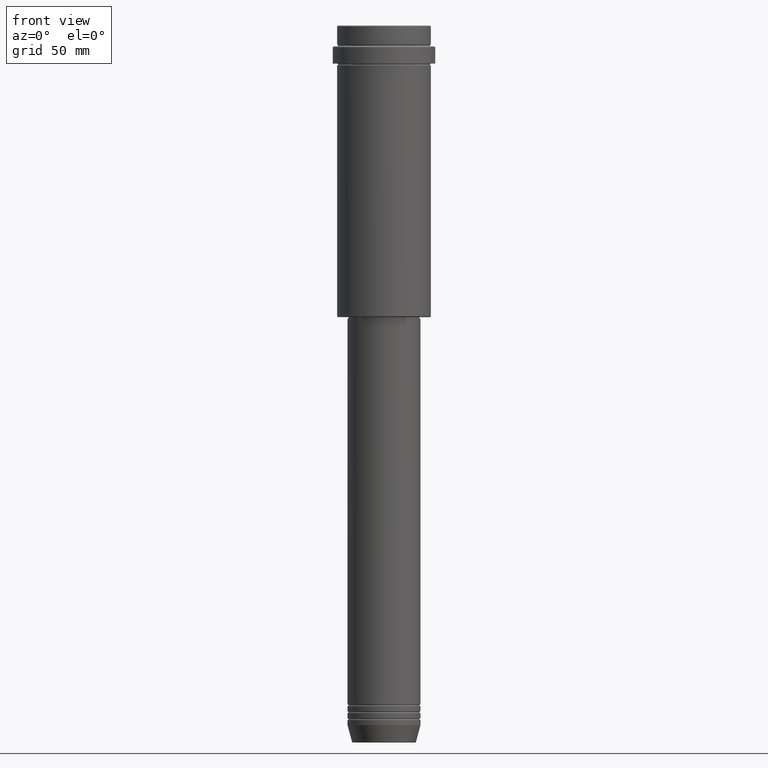
[diagram: clean part render]
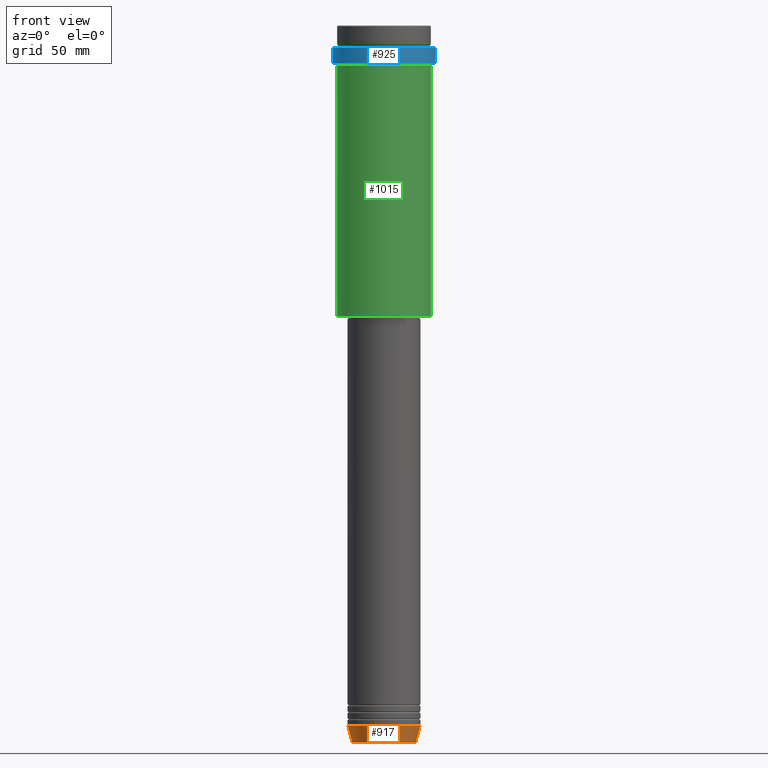
[diagram: same view with three faces highlighted in distinct colors, each labeled with its STEP entity id]
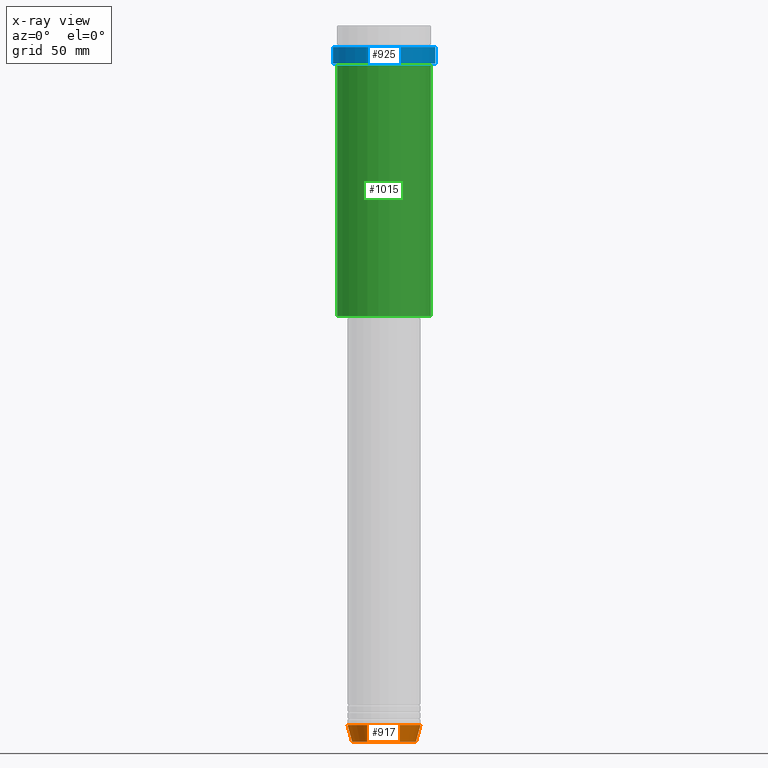
[diagram: x-ray of the same camera — body ghosted, the three highlighted faces saturated]
A machine part, front view with three faces highlighted in distinct colors.
The next image is the same camera in x-ray (body ghosted, the three faces saturated) — at least one of them is partly hidden behind the body in this view.
Their STEP definitions:

[orange] entity #917 — the highlighted conical surface has half-angle 15 deg.
#12 = LINE ( 'NONE', #343, #694 ) ;
#68 = VERTEX_POINT ( 'NONE', #707 ) ;
#70 = AXIS2_PLACEMENT_3D ( 'NONE', #159, #684, #705 ) ;
#116 = CARTESIAN_POINT ( 'NONE',  ( 21.00000000000000000, 0.000000000000000000, -402.9999999999999432 ) ) ;
#159 = CARTESIAN_POINT ( 'NONE',  ( 0.000000000000000000, 0.000000000000000000, -412.6294095225512137 ) ) ;
#195 = DIRECTION ( 'NONE',  ( 0.2588190451025211836, 0.000000000000000000, 0.9659258262890680902 ) ) ;
#201 = VERTEX_POINT ( 'NONE', #116 ) ;
#215 = ORIENTED_EDGE ( 'NONE', *, *, #997, .T. ) ;
#219 = CARTESIAN_POINT ( 'NONE',  ( -21.00000000000000000, 2.571758278209441661E-15, -402.9999999999999432 ) ) ;
#248 = CARTESIAN_POINT ( 'NONE',  ( -21.00000000000000000, 2.571758278209441661E-15, -402.9999999999999432 ) ) ;
#343 = CARTESIAN_POINT ( 'NONE',  ( 21.00000000000000000, 0.000000000000000000, -402.9999999999999432 ) ) ;
#367 = VERTEX_POINT ( 'NONE', #740 ) ;
#376 = VERTEX_POINT ( 'NONE', #248 ) ;
#382 = CONICAL_SURFACE ( 'NONE', #1123, 21.00000000000000000, 0.2617993877991499074 ) ;
#527 = EDGE_LOOP ( 'NONE', ( #1245, #643, #215, #592 ) ) ;
#569 = DIRECTION ( 'NONE',  ( -0.000000000000000000, -0.000000000000000000, 1.000000000000000000 ) ) ;
#587 = VECTOR ( 'NONE', #1079, 1000.000000000000114 ) ;
#592 = ORIENTED_EDGE ( 'NONE', *, *, #816, .F. ) ;
#622 = FACE_OUTER_BOUND ( 'NONE', #527, .T. ) ;
#643 = ORIENTED_EDGE ( 'NONE', *, *, #1165, .T. ) ;
#675 = CIRCLE ( 'NONE', #70, 18.41980749484383750 ) ;
#684 = DIRECTION ( 'NONE',  ( -0.000000000000000000, -0.000000000000000000, 1.000000000000000000 ) ) ;
#694 = VECTOR ( 'NONE', #195, 1000.000000000000114 ) ;
#700 = CARTESIAN_POINT ( 'NONE',  ( 0.000000000000000000, 0.000000000000000000, -402.9999999999999432 ) ) ;
#705 = DIRECTION ( 'NONE',  ( 1.000000000000000000, 0.000000000000000000, 0.000000000000000000 ) ) ;
#707 = CARTESIAN_POINT ( 'NONE',  ( -18.41980749484383750, 2.413767053578267458E-15, -412.6294095225512137 ) ) ;
#740 = CARTESIAN_POINT ( 'NONE',  ( 18.41980749484383750, 0.000000000000000000, -412.6294095225512137 ) ) ;
#816 = EDGE_CURVE ( 'NONE', #376, #201, #1054, .T. ) ;
#897 = AXIS2_PLACEMENT_3D ( 'NONE', #700, #569, #992 ) ;
#917 = ADVANCED_FACE ( 'NONE', ( #622 ), #382, .T. ) ;
#992 = DIRECTION ( 'NONE',  ( 1.000000000000000000, 0.000000000000000000, 0.000000000000000000 ) ) ;
#997 = EDGE_CURVE ( 'NONE', #367, #201, #12, .T. ) ;
#1039 = CARTESIAN_POINT ( 'NONE',  ( 0.000000000000000000, 0.000000000000000000, -402.9999999999999432 ) ) ;
#1054 = CIRCLE ( 'NONE', #897, 21.00000000000000000 ) ;
#1075 = EDGE_CURVE ( 'NONE', #68, #376, #1280, .T. ) ;
#1079 = DIRECTION ( 'NONE',  ( -0.2588190451025211836, 3.169619151431770488E-17, 0.9659258262890680902 ) ) ;
#1123 = AXIS2_PLACEMENT_3D ( 'NONE', #1039, #1132, #1354 ) ;
#1132 = DIRECTION ( 'NONE',  ( -0.000000000000000000, -0.000000000000000000, 1.000000000000000000 ) ) ;
#1165 = EDGE_CURVE ( 'NONE', #68, #367, #675, .T. ) ;
#1245 = ORIENTED_EDGE ( 'NONE', *, *, #1075, .F. ) ;
#1280 = LINE ( 'NONE', #219, #587 ) ;
#1354 = DIRECTION ( 'NONE',  ( 1.000000000000000000, 0.000000000000000000, 0.000000000000000000 ) ) ;

[blue] entity #925 — the highlighted cylindrical surface (partial cylindrical patch) has radius 29.5 mm, axis along (-0, -0, 1).
#150 = AXIS2_PLACEMENT_3D ( 'NONE', #461, #1320, #710 ) ;
#185 = DIRECTION ( 'NONE',  ( -0.000000000000000000, -0.000000000000000000, 1.000000000000000000 ) ) ;
#209 = ORIENTED_EDGE ( 'NONE', *, *, #256, .T. ) ;
#256 = EDGE_CURVE ( 'NONE', #1339, #439, #722, .T. ) ;
#335 = CIRCLE ( 'NONE', #1261, 29.50000000000000000 ) ;
#361 = ORIENTED_EDGE ( 'NONE', *, *, #1388, .F. ) ;
#439 = VERTEX_POINT ( 'NONE', #827 ) ;
#461 = CARTESIAN_POINT ( 'NONE',  ( 0.000000000000000000, 0.000000000000000000, -22.00000000000000711 ) ) ;
#525 = AXIS2_PLACEMENT_3D ( 'NONE', #1379, #1364, #807 ) ;
#551 = CARTESIAN_POINT ( 'NONE',  ( -29.50000000000000000, 3.612708057484691604E-15, -12.50000000000006040 ) ) ;
#606 = FACE_OUTER_BOUND ( 'NONE', #1347, .T. ) ;
#618 = EDGE_CURVE ( 'NONE', #1025, #1081, #335, .T. ) ;
#626 = CARTESIAN_POINT ( 'NONE',  ( -29.50000000000000000, 3.612708057484691604E-15, 0.000000000000000000 ) ) ;
#638 = CARTESIAN_POINT ( 'NONE',  ( 29.50000000000000000, 0.000000000000000000, -12.50000000000006040 ) ) ;
#710 = DIRECTION ( 'NONE',  ( 1.000000000000000000, 0.000000000000000000, 0.000000000000000000 ) ) ;
#721 = LINE ( 'NONE', #626, #883 ) ;
#722 = CIRCLE ( 'NONE', #150, 29.49999999999999645 ) ;
#768 = VECTOR ( 'NONE', #1335, 1000.000000000000000 ) ;
#779 = LINE ( 'NONE', #1108, #768 ) ;
#807 = DIRECTION ( 'NONE',  ( 1.000000000000000000, 0.000000000000000000, 0.000000000000000000 ) ) ;
#827 = CARTESIAN_POINT ( 'NONE',  ( 29.49999999999999645, 0.000000000000000000, -22.00000000000000711 ) ) ;
#883 = VECTOR ( 'NONE', #185, 1000.000000000000000 ) ;
#915 = DIRECTION ( 'NONE',  ( 1.000000000000000000, 0.000000000000000000, 0.000000000000000000 ) ) ;
#925 = ADVANCED_FACE ( 'NONE', ( #606 ), #940, .T. ) ;
#931 = CARTESIAN_POINT ( 'NONE',  ( -29.49999999999999645, 3.612708057484690815E-15, -22.00000000000000711 ) ) ;
#937 = DIRECTION ( 'NONE',  ( 0.000000000000000000, 0.000000000000000000, -1.000000000000000000 ) ) ;
#940 = CYLINDRICAL_SURFACE ( 'NONE', #525, 29.50000000000000000 ) ;
#974 = ORIENTED_EDGE ( 'NONE', *, *, #618, .T. ) ;
#976 = ORIENTED_EDGE ( 'NONE', *, *, #1119, .T. ) ;
#1025 = VERTEX_POINT ( 'NONE', #638 ) ;
#1081 = VERTEX_POINT ( 'NONE', #551 ) ;
#1108 = CARTESIAN_POINT ( 'NONE',  ( 29.50000000000000000, 0.000000000000000000, 0.000000000000000000 ) ) ;
#1119 = EDGE_CURVE ( 'NONE', #439, #1025, #779, .T. ) ;
#1261 = AXIS2_PLACEMENT_3D ( 'NONE', #1316, #937, #915 ) ;
#1316 = CARTESIAN_POINT ( 'NONE',  ( 0.000000000000000000, 0.000000000000000000, -12.50000000000006040 ) ) ;
#1320 = DIRECTION ( 'NONE',  ( -0.000000000000000000, -0.000000000000000000, 1.000000000000000000 ) ) ;
#1335 = DIRECTION ( 'NONE',  ( -0.000000000000000000, -0.000000000000000000, 1.000000000000000000 ) ) ;
#1339 = VERTEX_POINT ( 'NONE', #931 ) ;
#1347 = EDGE_LOOP ( 'NONE', ( #361, #209, #976, #974 ) ) ;
#1364 = DIRECTION ( 'NONE',  ( -0.000000000000000000, -0.000000000000000000, 1.000000000000000000 ) ) ;
#1379 = CARTESIAN_POINT ( 'NONE',  ( 0.000000000000000000, 0.000000000000000000, 0.000000000000000000 ) ) ;
#1388 = EDGE_CURVE ( 'NONE', #1339, #1081, #721, .T. ) ;

[green] entity #1015 — the highlighted cylindrical surface (partial cylindrical patch) has radius 27 mm, axis along (-0, -0, 1).
#17 = AXIS2_PLACEMENT_3D ( 'NONE', #129, #119, #1164 ) ;
#60 = LINE ( 'NONE', #471, #1306 ) ;
#64 = DIRECTION ( 'NONE',  ( -0.000000000000000000, -0.000000000000000000, 1.000000000000000000 ) ) ;
#119 = DIRECTION ( 'NONE',  ( -0.000000000000000000, -0.000000000000000000, 1.000000000000000000 ) ) ;
#129 = CARTESIAN_POINT ( 'NONE',  ( 0.000000000000000000, 0.000000000000000000, 0.000000000000000000 ) ) ;
#168 = VERTEX_POINT ( 'NONE', #1180 ) ;
#169 = ORIENTED_EDGE ( 'NONE', *, *, #371, .T. ) ;
#205 = CARTESIAN_POINT ( 'NONE',  ( 27.00000000000000355, 0.000000000000000000, -167.5000000000000568 ) ) ;
#285 = VECTOR ( 'NONE', #1337, 1000.000000000000000 ) ;
#295 = EDGE_CURVE ( 'NONE', #168, #905, #381, .T. ) ;
#311 = CYLINDRICAL_SURFACE ( 'NONE', #17, 27.00000000000000355 ) ;
#316 = AXIS2_PLACEMENT_3D ( 'NONE', #911, #64, #1033 ) ;
#321 = DIRECTION ( 'NONE',  ( -0.000000000000000000, -0.000000000000000000, 1.000000000000000000 ) ) ;
#355 = DIRECTION ( 'NONE',  ( -0.000000000000000000, -0.000000000000000000, 1.000000000000000000 ) ) ;
#358 = CARTESIAN_POINT ( 'NONE',  ( -27.00000000000000355, 3.306546357697854128E-15, 0.000000000000000000 ) ) ;
#371 = EDGE_CURVE ( 'NONE', #168, #720, #1048, .T. ) ;
#381 = LINE ( 'NONE', #358, #285 ) ;
#471 = CARTESIAN_POINT ( 'NONE',  ( 27.00000000000000355, 0.000000000000000000, 0.000000000000000000 ) ) ;
#523 = FACE_OUTER_BOUND ( 'NONE', #534, .T. ) ;
#534 = EDGE_LOOP ( 'NONE', ( #772, #169, #1019, #936 ) ) ;
#697 = CARTESIAN_POINT ( 'NONE',  ( 27.00000000000000355, 0.000000000000000000, -23.00000000000001421 ) ) ;
#720 = VERTEX_POINT ( 'NONE', #205 ) ;
#747 = DIRECTION ( 'NONE',  ( -1.000000000000000000, 0.000000000000000000, 0.000000000000000000 ) ) ;
#772 = ORIENTED_EDGE ( 'NONE', *, *, #295, .F. ) ;
#840 = VERTEX_POINT ( 'NONE', #697 ) ;
#851 = EDGE_CURVE ( 'NONE', #905, #840, #982, .T. ) ;
#905 = VERTEX_POINT ( 'NONE', #1249 ) ;
#911 = CARTESIAN_POINT ( 'NONE',  ( 0.000000000000000000, 0.000000000000000000, -23.00000000000001421 ) ) ;
#936 = ORIENTED_EDGE ( 'NONE', *, *, #851, .F. ) ;
#982 = CIRCLE ( 'NONE', #316, 27.00000000000000355 ) ;
#1015 = ADVANCED_FACE ( 'NONE', ( #523 ), #311, .T. ) ;
#1019 = ORIENTED_EDGE ( 'NONE', *, *, #1154, .T. ) ;
#1033 = DIRECTION ( 'NONE',  ( 1.000000000000000000, 0.000000000000000000, 0.000000000000000000 ) ) ;
#1048 = CIRCLE ( 'NONE', #1231, 27.00000000000000355 ) ;
#1056 = CARTESIAN_POINT ( 'NONE',  ( 0.000000000000000000, 0.000000000000000000, -167.5000000000000568 ) ) ;
#1154 = EDGE_CURVE ( 'NONE', #720, #840, #60, .T. ) ;
#1164 = DIRECTION ( 'NONE',  ( 1.000000000000000000, 0.000000000000000000, 0.000000000000000000 ) ) ;
#1180 = CARTESIAN_POINT ( 'NONE',  ( -27.00000000000000355, 3.306546357697854128E-15, -167.5000000000000568 ) ) ;
#1231 = AXIS2_PLACEMENT_3D ( 'NONE', #1056, #321, #747 ) ;
#1249 = CARTESIAN_POINT ( 'NONE',  ( -27.00000000000000355, 3.306546357697854128E-15, -23.00000000000001421 ) ) ;
#1306 = VECTOR ( 'NONE', #355, 1000.000000000000000 ) ;
#1337 = DIRECTION ( 'NONE',  ( -0.000000000000000000, -0.000000000000000000, 1.000000000000000000 ) ) ;